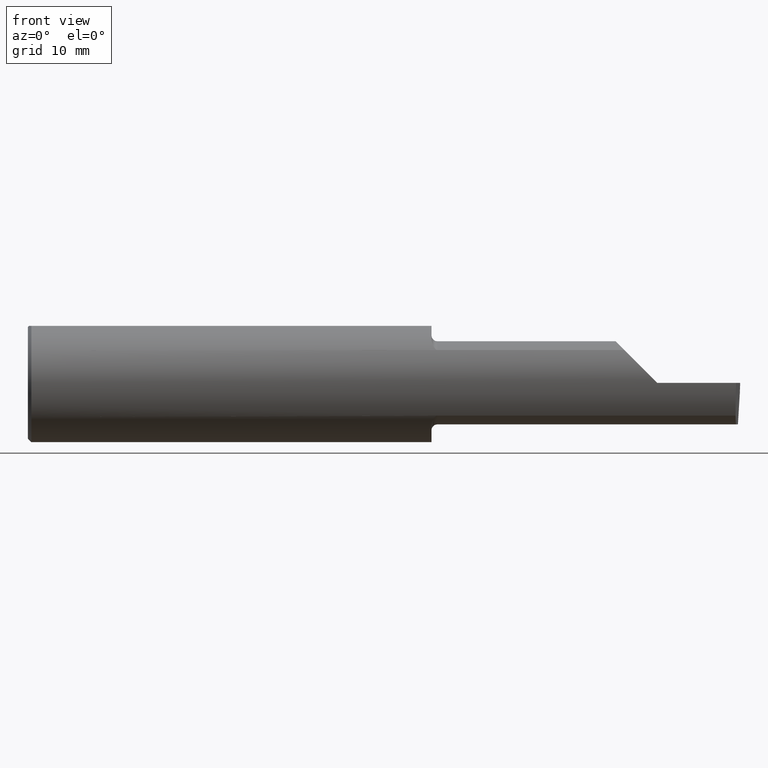
[diagram: clean part render]
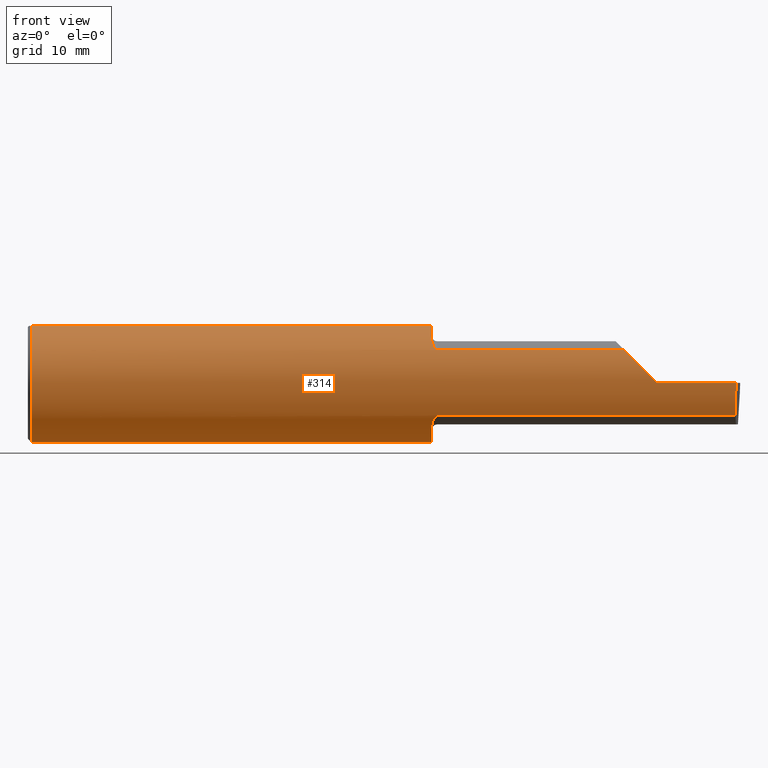
[diagram: same view with one face highlighted and labeled with its STEP entity id]
A machine part, front view. The second image highlights one B-rep face of the part: STEP entity #314.
In plain terms, the highlighted cylindrical surface (partial cylindrical patch) has radius 6.3462 mm, axis along (-1, -0, -0).
Its self-contained STEP definition (entity closure, byte-faithful):
#11 = CARTESIAN_POINT ( 'NONE',  ( 1.721700027347578876, -0.2077785947292768443, -0.1387580622202825020 ) ) ;
#31 = LINE ( 'NONE', #529, #437 ) ;
#35 = CARTESIAN_POINT ( 'NONE',  ( 0.01499999999999999944, 0.000000000000000000, -0.2498499999999999888 ) ) ;
#37 = VERTEX_POINT ( 'NONE', #356 ) ;
#44 = VERTEX_POINT ( 'NONE', #315 ) ;
#46 = LINE ( 'NONE', #345, #548 ) ;
#53 = VERTEX_POINT ( 'NONE', #120 ) ;
#59 = CARTESIAN_POINT ( 'NONE',  ( 1.725000000000000089, -0.2080850024789291375, -0.1382955322609665805 ) ) ;
#69 = CARTESIAN_POINT ( 'NONE',  ( 0.000000000000000000, 0.06997856814768359246, 0.2398500000000000076 ) ) ;
#78 = CARTESIAN_POINT ( 'NONE',  ( 1.712579853086619419, -0.2024300470081735470, -0.1464774911482684128 ) ) ;
#81 = CARTESIAN_POINT ( 'NONE',  ( 1.714343523383978773, -0.2041337200786084161, 0.1440846171672511000 ) ) ;
#84 = CARTESIAN_POINT ( 'NONE',  ( 2.982632426700501327, -0.2498495826666993214, -0.0004566631977791965049 ) ) ;
#87 = EDGE_CURVE ( 'NONE', #638, #590, #681, .T. ) ;
#88 = CARTESIAN_POINT ( 'NONE',  ( 1.718876997637615034, -0.2068363917296600907, 0.1401586554522229189 ) ) ;
#99 = VERTEX_POINT ( 'NONE', #499 ) ;
#109 = DIRECTION ( 'NONE',  ( 0.02616100201822768243, -0.0009135623211515312911, 0.9996573249755575929 ) ) ;
#110 = DIRECTION ( 'NONE',  ( 0.000000000000000000, 0.000000000000000000, -1.000000000000000000 ) ) ;
#115 = CIRCLE ( 'NONE', #195, 0.2498499999999999888 ) ;
#117 = ORIENTED_EDGE ( 'NONE', *, *, #329, .F. ) ;
#120 = CARTESIAN_POINT ( 'NONE',  ( 2.982644377562602589, -0.2498499999999999610, 1.813681607540488003E-17 ) ) ;
#135 = VECTOR ( 'NONE', #335, 39.37007874015748143 ) ;
#138 = EDGE_CURVE ( 'NONE', #142, #219, #312, .T. ) ;
#142 = VERTEX_POINT ( 'NONE', #369 ) ;
#153 = DIRECTION ( 'NONE',  ( 1.000000000000000000, 0.000000000000000000, 0.000000000000000000 ) ) ;
#158 = CARTESIAN_POINT ( 'NONE',  ( 1.721718393013769610, -0.2077830475237242569, 0.1387513848711936226 ) ) ;
#177 = ORIENTED_EDGE ( 'NONE', *, *, #712, .F. ) ;
#185 = CARTESIAN_POINT ( 'NONE',  ( 1.701385488563270210, -0.1808287530430325862, -0.1728790649396286794 ) ) ;
#186 =( BOUNDED_CURVE ( )  B_SPLINE_CURVE ( 3, ( #694, #339, #330, #508 ),
 .UNSPECIFIED., .F., .T. ) 
 B_SPLINE_CURVE_WITH_KNOTS ( ( 4, 4 ),
 ( 4.712388980384689674, 5.298966915116346321 ),
 .UNSPECIFIED. ) 
 CURVE ( )  GEOMETRIC_REPRESENTATION_ITEM ( )  RATIONAL_B_SPLINE_CURVE ( ( 1.000000000000000000, 0.9715321379117538569, 0.9715321379117538569, 1.000000000000000000 ) ) 
 REPRESENTATION_ITEM ( '' )  );
#195 = AXIS2_PLACEMENT_3D ( 'NONE', #432, #675, #313 ) ;
#198 = EDGE_CURVE ( 'NONE', #53, #99, #589, .T. ) ;
#203 = DIRECTION ( 'NONE',  ( -1.000000000000000000, -0.000000000000000000, -0.000000000000000000 ) ) ;
#211 = ORIENTED_EDGE ( 'NONE', *, *, #234, .T. ) ;
#219 = VERTEX_POINT ( 'NONE', #643 ) ;
#222 = LINE ( 'NONE', #418, #667 ) ;
#234 = EDGE_CURVE ( 'NONE', #99, #624, #186, .T. ) ;
#239 = CARTESIAN_POINT ( 'NONE',  ( 1.700000000000000178, 0.000000000000000000, 0.000000000000000000 ) ) ;
#245 = CARTESIAN_POINT ( 'NONE',  ( 0.000000000000000000, 0.000000000000000000, 0.000000000000000000 ) ) ;
#254 = CARTESIAN_POINT ( 'NONE',  ( 1.723318040126429640, -0.2080850024789289987, -0.1382955322609666915 ) ) ;
#255 = CARTESIAN_POINT ( 'NONE',  ( 0.000000000000000000, -0.06997856814768359246, 0.2398500000000000076 ) ) ;
#260 = CARTESIAN_POINT ( 'NONE',  ( 1.718863362722771404, -0.2068301641248771194, -0.1401678546132359982 ) ) ;
#264 = CARTESIAN_POINT ( 'NONE',  ( 1.714302603425052363, -0.2041009206016213828, -0.1441313430770039816 ) ) ;
#272 = AXIS2_PLACEMENT_3D ( 'NONE', #775, #706, #481 ) ;
#275 = VECTOR ( 'NONE', #562, 39.37007874015748143 ) ;
#277 = B_SPLINE_CURVE_WITH_KNOTS ( 'NONE', 3,
 ( #680, #457, #470, #705, #399, #765, #595, #341, #81, #292, #88, #158, #696, #532 ),
 .UNSPECIFIED., .F., .F.,
 ( 4, 2, 2, 2, 2, 2, 4 ),
 ( 0.0003834465838148164922, 0.0008781406165086738831, 0.001372834649202531437, 0.001867528681896388773, 0.002114875698243311695, 0.002238549206416766760, 0.002362222714590221824 ),
 .UNSPECIFIED. ) ;
#287 = CARTESIAN_POINT ( 'NONE',  ( 2.981341028891337785, -0.2497592792593336664, -0.04986346618389509572 ) ) ;
#292 = CARTESIAN_POINT ( 'NONE',  ( 1.717647060162628581, -0.2062109266231183513, 0.1410799729252290025 ) ) ;
#304 = VERTEX_POINT ( 'NONE', #428 ) ;
#309 = DIRECTION ( 'NONE',  ( 0.000000000000000000, 0.000000000000000000, 1.000000000000000000 ) ) ;
#312 = CIRCLE ( 'NONE', #500, 0.2498499999999999888 ) ;
#313 = DIRECTION ( 'NONE',  ( 0.000000000000000000, 0.000000000000000000, -1.000000000000000000 ) ) ;
#314 = ADVANCED_FACE ( 'NONE', ( #617 ), #786, .T. ) ;
#315 = CARTESIAN_POINT ( 'NONE',  ( 1.700000000000000178, -0.1616050818046604332, 0.1905487340154980169 ) ) ;
#322 = DIRECTION ( 'NONE',  ( 1.000000000000000000, 0.000000000000000000, 0.000000000000000000 ) ) ;
#324 = ORIENTED_EDGE ( 'NONE', *, *, #87, .F. ) ;
#328 = CARTESIAN_POINT ( 'NONE',  ( 2.982632426700501327, -0.2498495826666993214, -0.0004566631977791965049 ) ) ;
#329 = EDGE_CURVE ( 'NONE', #304, #624, #222, .T. ) ;
#330 = CARTESIAN_POINT ( 'NONE',  ( 2.552984868485333347, -0.2355204011147992438, 0.09701513151466735485 ) ) ;
#333 = EDGE_LOOP ( 'NONE', ( #601, #352, #211, #117, #603, #784, #324, #685, #177, #398, #796, #703, #539, #443 ) ) ;
#335 = DIRECTION ( 'NONE',  ( -1.000000000000000000, -0.000000000000000000, -0.000000000000000000 ) ) ;
#339 = CARTESIAN_POINT ( 'NONE',  ( 2.600434159100403875, -0.2498499999999999055, 0.04956584089959691769 ) ) ;
#341 = CARTESIAN_POINT ( 'NONE',  ( 1.712616400345754908, -0.2024684335577102146, 0.1464246884265637538 ) ) ;
#345 = CARTESIAN_POINT ( 'NONE',  ( 2.977412177158956563, -0.2496672875357696664, -0.1999314649951114686 ) ) ;
#352 = ORIENTED_EDGE ( 'NONE', *, *, #198, .T. ) ;
#356 = CARTESIAN_POINT ( 'NONE',  ( 0.01499999999999998036, 0.06997856814768359246, 0.2398500000000000076 ) ) ;
#365 =( BOUNDED_CURVE ( )  B_SPLINE_CURVE ( 3, ( #758, #402, #287, #84 ),
 .UNSPECIFIED., .F., .T. ) 
 B_SPLINE_CURVE_WITH_KNOTS ( ( 4, 4 ),
 ( 0.05713034791898994463, 0.6418805321922130824 ),
 .UNSPECIFIED. ) 
 CURVE ( )  GEOMETRIC_REPRESENTATION_ITEM ( )  RATIONAL_B_SPLINE_CURVE ( ( 1.000000000000000000, 0.9717080070095575062, 0.9717080070095575062, 1.000000000000000000 ) ) 
 REPRESENTATION_ITEM ( '' )  );
#369 = CARTESIAN_POINT ( 'NONE',  ( 1.700000000000000178, -0.1616050818046604332, -0.1905487340154980169 ) ) ;
#391 = CARTESIAN_POINT ( 'NONE',  ( 1.708176740666625060, -0.1972027065478073882, -0.1535263573771913082 ) ) ;
#395 = LINE ( 'NONE', #69, #275 ) ;
#397 = EDGE_CURVE ( 'NONE', #531, #53, #46, .T. ) ;
#398 = ORIENTED_EDGE ( 'NONE', *, *, #587, .F. ) ;
#399 = CARTESIAN_POINT ( 'NONE',  ( 1.702968662030528657, -0.1849684355203378150, 0.1680843977756267538 ) ) ;
#402 = CARTESIAN_POINT ( 'NONE',  ( 2.980602402804240381, -0.2354324170447263109, -0.09714751587401684874 ) ) ;
#409 = EDGE_CURVE ( 'NONE', #648, #638, #787, .T. ) ;
#410 = DIRECTION ( 'NONE',  ( 0.000000000000000000, 0.000000000000000000, 1.000000000000000000 ) ) ;
#411 = EDGE_CURVE ( 'NONE', #424, #761, #31, .T. ) ;
#418 = CARTESIAN_POINT ( 'NONE',  ( 2.315500000000000114, -0.2080850024789291652, 0.1382955322609665250 ) ) ;
#424 = VERTEX_POINT ( 'NONE', #543 ) ;
#425 = AXIS2_PLACEMENT_3D ( 'NONE', #245, #725, #309 ) ;
#428 = CARTESIAN_POINT ( 'NONE',  ( 1.725000000000000089, -0.2080850024789292485, 0.1382955322609664972 ) ) ;
#432 = CARTESIAN_POINT ( 'NONE',  ( 1.700000000000000178, 0.000000000000000000, 0.000000000000000000 ) ) ;
#436 = AXIS2_PLACEMENT_3D ( 'NONE', #770, #203, #410 ) ;
#437 = VECTOR ( 'NONE', #600, 39.37007874015748143 ) ;
#440 = CARTESIAN_POINT ( 'NONE',  ( 1.700000000000000178, -0.1716188362992555616, -0.1820560320165479640 ) ) ;
#441 = EDGE_CURVE ( 'NONE', #590, #44, #115, .T. ) ;
#443 = ORIENTED_EDGE ( 'NONE', *, *, #684, .T. ) ;
#454 = CARTESIAN_POINT ( 'NONE',  ( 0.01499999999999999944, -0.06997856814768359246, 0.2398500000000000076 ) ) ;
#457 = CARTESIAN_POINT ( 'NONE',  ( 1.700000000000000400, -0.1665641037263010105, 0.1863429692936361404 ) ) ;
#470 = CARTESIAN_POINT ( 'NONE',  ( 1.700367168219774072, -0.1713400252854603567, 0.1819601557798505298 ) ) ;
#481 = DIRECTION ( 'NONE',  ( 0.000000000000000000, 0.000000000000000000, 1.000000000000000000 ) ) ;
#485 = DIRECTION ( 'NONE',  ( 1.000000000000000000, 0.000000000000000000, 0.000000000000000000 ) ) ;
#496 = CARTESIAN_POINT ( 'NONE',  ( 1.706147634408388125, -0.1932733126899460752, -0.1584637047788196307 ) ) ;
#499 = CARTESIAN_POINT ( 'NONE',  ( 2.650000000000000355, -0.2498499999999999610, 4.286263797015727350E-17 ) ) ;
#500 = AXIS2_PLACEMENT_3D ( 'NONE', #239, #485, #110 ) ;
#508 = CARTESIAN_POINT ( 'NONE',  ( 2.511704467739034552, -0.2080850024789292485, 0.1382955322609664139 ) ) ;
#517 = CARTESIAN_POINT ( 'NONE',  ( 4.499279347985559139E-32, -0.2498499999999999610, 3.673940397442053459E-16 ) ) ;
#529 = CARTESIAN_POINT ( 'NONE',  ( 2.315500000000000114, -0.2080850024789291652, -0.1382955322609665250 ) ) ;
#531 = VERTEX_POINT ( 'NONE', #328 ) ;
#532 = CARTESIAN_POINT ( 'NONE',  ( 1.725000000000000089, -0.2080850024789292485, 0.1382955322609664972 ) ) ;
#539 = ORIENTED_EDGE ( 'NONE', *, *, #411, .F. ) ;
#543 = CARTESIAN_POINT ( 'NONE',  ( 2.980479240051444378, -0.2080850024789291652, -0.1382955322609665250 ) ) ;
#548 = VECTOR ( 'NONE', #109, 39.37007874015748854 ) ;
#562 = DIRECTION ( 'NONE',  ( -1.000000000000000000, -0.000000000000000000, -0.000000000000000000 ) ) ;
#564 = VECTOR ( 'NONE', #322, 39.37007874015748143 ) ;
#567 = CARTESIAN_POINT ( 'NONE',  ( 1.700000000000000178, -0.06997856814768374512, 0.2398500000000000076 ) ) ;
#577 = CIRCLE ( 'NONE', #436, 0.2498499999999999888 ) ;
#587 = EDGE_CURVE ( 'NONE', #219, #37, #395, .T. ) ;
#589 = LINE ( 'NONE', #517, #135 ) ;
#590 = VERTEX_POINT ( 'NONE', #567 ) ;
#595 = CARTESIAN_POINT ( 'NONE',  ( 1.708182335268384477, -0.1972192205116131691, 0.1535061413537209818 ) ) ;
#599 = EDGE_CURVE ( 'NONE', #761, #142, #736, .T. ) ;
#600 = DIRECTION ( 'NONE',  ( -1.000000000000000000, -0.000000000000000000, -0.000000000000000000 ) ) ;
#601 = ORIENTED_EDGE ( 'NONE', *, *, #397, .T. ) ;
#603 = ORIENTED_EDGE ( 'NONE', *, *, #608, .F. ) ;
#608 = EDGE_CURVE ( 'NONE', #44, #304, #277, .T. ) ;
#617 = FACE_OUTER_BOUND ( 'NONE', #333, .T. ) ;
#624 = VERTEX_POINT ( 'NONE', #652 ) ;
#635 = CARTESIAN_POINT ( 'NONE',  ( 1.700000000000000178, -0.1616050818046604332, -0.1905487340154980169 ) ) ;
#638 = VERTEX_POINT ( 'NONE', #454 ) ;
#639 = CARTESIAN_POINT ( 'NONE',  ( 1.717611663768900510, -0.2061921161193830676, -0.1411075319999376687 ) ) ;
#643 = CARTESIAN_POINT ( 'NONE',  ( 1.700000000000000178, 0.06997856814768360634, 0.2398500000000000076 ) ) ;
#648 = VERTEX_POINT ( 'NONE', #35 ) ;
#652 = CARTESIAN_POINT ( 'NONE',  ( 2.511704467739034552, -0.2080850024789292485, 0.1382955322609664139 ) ) ;
#667 = VECTOR ( 'NONE', #153, 39.37007874015748143 ) ;
#675 = DIRECTION ( 'NONE',  ( 1.000000000000000000, 0.000000000000000000, 0.000000000000000000 ) ) ;
#680 = CARTESIAN_POINT ( 'NONE',  ( 1.700000000000000178, -0.1616050818046604332, 0.1905487340154980169 ) ) ;
#681 = LINE ( 'NONE', #255, #564 ) ;
#684 = EDGE_CURVE ( 'NONE', #424, #531, #365, .T. ) ;
#685 = ORIENTED_EDGE ( 'NONE', *, *, #409, .F. ) ;
#694 = CARTESIAN_POINT ( 'NONE',  ( 2.650000000000000355, -0.2498499999999999610, 4.286263797015727350E-17 ) ) ;
#696 = CARTESIAN_POINT ( 'NONE',  ( 1.723329956043142985, -0.2080850024798590603, 0.1382955322595675884 ) ) ;
#703 = ORIENTED_EDGE ( 'NONE', *, *, #599, .F. ) ;
#705 = CARTESIAN_POINT ( 'NONE',  ( 1.701849548162864600, -0.1805300287242674606, 0.1728462070311780063 ) ) ;
#706 = DIRECTION ( 'NONE',  ( -1.000000000000000000, -0.000000000000000000, -0.000000000000000000 ) ) ;
#712 = EDGE_CURVE ( 'NONE', #37, #648, #577, .T. ) ;
#718 = CARTESIAN_POINT ( 'NONE',  ( 1.725000000000000089, -0.2080850024789291375, -0.1382955322609665805 ) ) ;
#725 = DIRECTION ( 'NONE',  ( -1.000000000000000000, -0.000000000000000000, -0.000000000000000000 ) ) ;
#736 = B_SPLINE_CURVE_WITH_KNOTS ( 'NONE', 3,
 ( #59, #254, #11, #260, #639, #264, #78, #391, #496, #185, #440, #635 ),
 .UNSPECIFIED., .F., .F.,
 ( 4, 2, 2, 2, 2, 4 ),
 ( 1.964491429041408350E-07, 0.0001260981470478411324, 0.0002519998449527780849, 0.0005038032407626388169, 0.001007410032382360281, 0.002014623615621801908 ),
 .UNSPECIFIED. ) ;
#758 = CARTESIAN_POINT ( 'NONE',  ( 2.980479240051444378, -0.2080850024789291652, -0.1382955322609665250 ) ) ;
#761 = VERTEX_POINT ( 'NONE', #718 ) ;
#765 = CARTESIAN_POINT ( 'NONE',  ( 1.706159563508733878, -0.1933019864360849271, 0.1584298865564830183 ) ) ;
#770 = CARTESIAN_POINT ( 'NONE',  ( 0.01499999999999999944, 0.000000000000000000, 0.000000000000000000 ) ) ;
#775 = CARTESIAN_POINT ( 'NONE',  ( 0.01499999999999999944, 0.000000000000000000, 0.000000000000000000 ) ) ;
#784 = ORIENTED_EDGE ( 'NONE', *, *, #441, .F. ) ;
#786 = CYLINDRICAL_SURFACE ( 'NONE', #425, 0.2498499999999999888 ) ;
#787 = CIRCLE ( 'NONE', #272, 0.2498499999999999888 ) ;
#796 = ORIENTED_EDGE ( 'NONE', *, *, #138, .F. ) ;